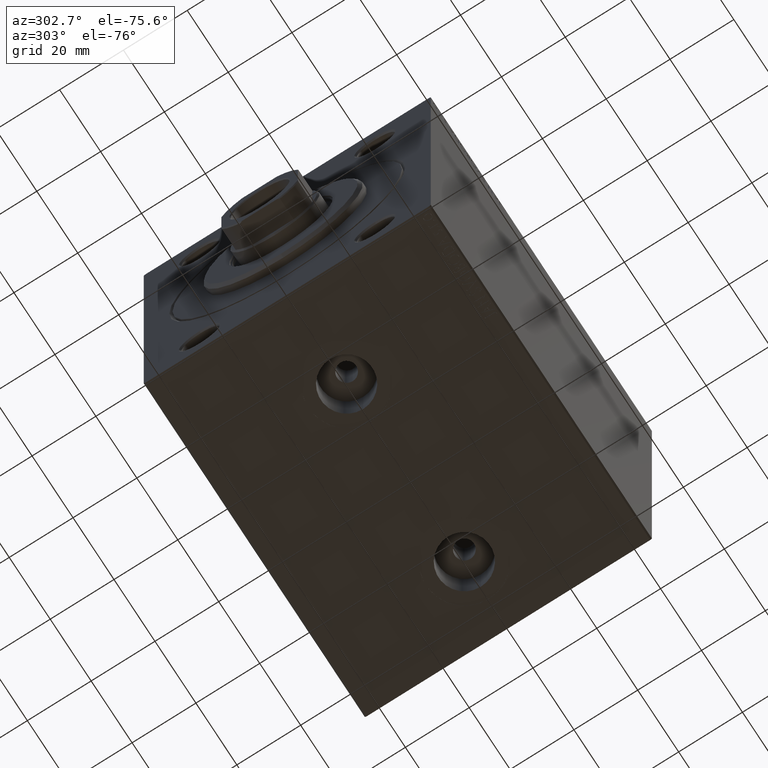
[diagram: clean part render]
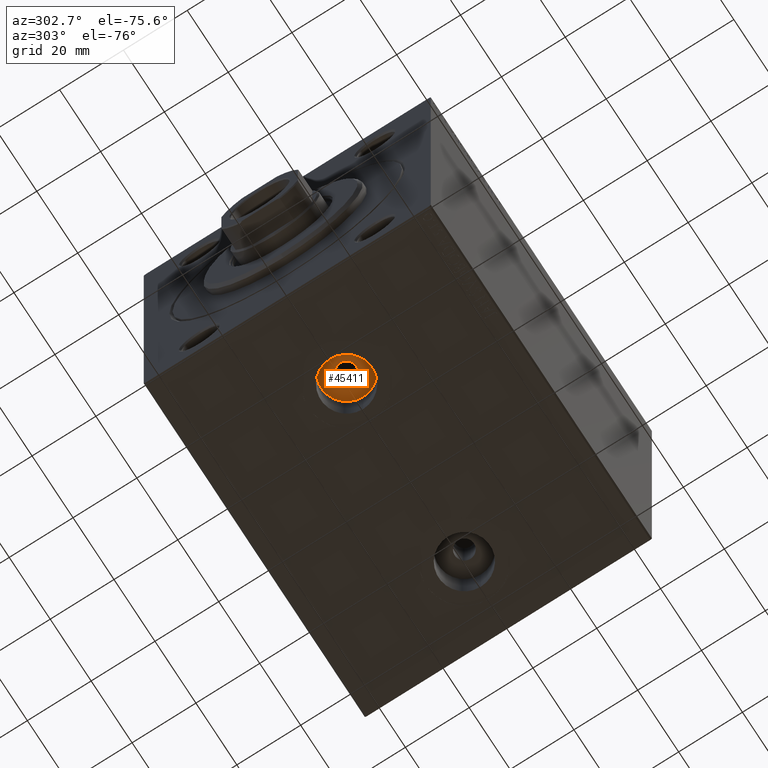
[diagram: same view with one face highlighted and labeled with its STEP entity id]
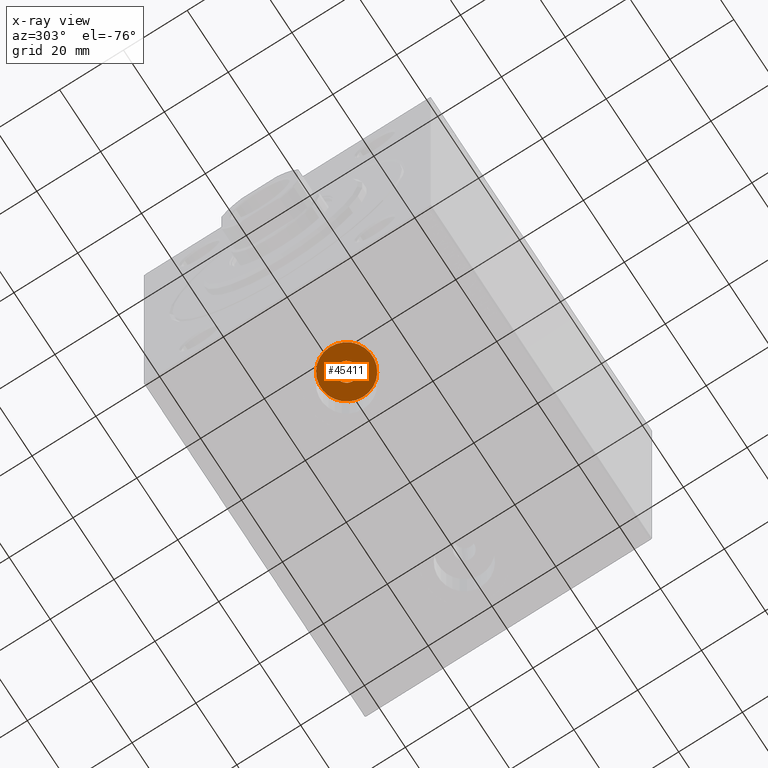
[diagram: x-ray of the same camera — body ghosted, the highlighted face saturated]
A machine part, auxiliary view. The second image highlights one B-rep face of the part: STEP entity #45411.
The next image is the same camera in x-ray: the body ghosted, the highlighted face saturated — about 0% of this face is hidden behind the body in this view.
In plain terms, the highlighted planar face has unit normal (0, 0, -1).
Its self-contained STEP definition (entity closure, byte-faithful):
#44 = AXIS2_PLACEMENT_3D ( 'NONE', #2964, #42216, #27690 ) ;
#894 = EDGE_LOOP ( 'NONE', ( #24087, #6669 ) ) ;
#1173 = AXIS2_PLACEMENT_3D ( 'NONE', #24225, #12927, #17056 ) ;
#1835 = DIRECTION ( 'NONE',  ( 0.000000000000000000, 0.000000000000000000, -1.000000000000000000 ) ) ;
#2733 = CIRCLE ( 'NONE', #20450, 8.084999999999999076 ) ;
#2964 = CARTESIAN_POINT ( 'NONE',  ( 29.00000000000000000, -3.767935990684166618E-15, -44.49999999999999289 ) ) ;
#5567 = DIRECTION ( 'NONE',  ( 0.000000000000000000, 0.000000000000000000, -1.000000000000000000 ) ) ;
#5581 = EDGE_CURVE ( 'NONE', #45728, #39964, #2733, .T. ) ;
#6669 = ORIENTED_EDGE ( 'NONE', *, *, #5581, .T. ) ;
#7065 = AXIS2_PLACEMENT_3D ( 'NONE', #29787, #1835, #23096 ) ;
#7847 = DIRECTION ( 'NONE',  ( -1.000000000000000000, 0.000000000000000000, 0.000000000000000000 ) ) ;
#8283 = CARTESIAN_POINT ( 'NONE',  ( 32.00000000000000000, -3.400541950939961568E-15, -44.49999999999999289 ) ) ;
#9814 = CARTESIAN_POINT ( 'NONE',  ( 26.00000000000000355, -3.767935990684166618E-15, -44.49999999999999289 ) ) ;
#12927 = DIRECTION ( 'NONE',  ( 0.000000000000000000, 0.000000000000000000, -1.000000000000000000 ) ) ;
#15704 = PLANE ( 'NONE',  #7065 ) ;
#16430 = DIRECTION ( 'NONE',  ( -1.000000000000000000, 0.000000000000000000, 0.000000000000000000 ) ) ;
#17056 = DIRECTION ( 'NONE',  ( -1.000000000000000000, 0.000000000000000000, 0.000000000000000000 ) ) ;
#17774 = CARTESIAN_POINT ( 'NONE',  ( 29.00000000000000000, -3.767935990684166618E-15, -44.49999999999999289 ) ) ;
#18107 = EDGE_CURVE ( 'NONE', #39964, #45728, #44410, .T. ) ;
#18706 = FACE_BOUND ( 'NONE', #35829, .T. ) ;
#20450 = AXIS2_PLACEMENT_3D ( 'NONE', #24037, #5567, #16430 ) ;
#22417 = FACE_OUTER_BOUND ( 'NONE', #894, .T. ) ;
#23026 = CIRCLE ( 'NONE', #25992, 2.999999999999999112 ) ;
#23096 = DIRECTION ( 'NONE',  ( -1.000000000000000000, 0.000000000000000000, -0.000000000000000000 ) ) ;
#24037 = CARTESIAN_POINT ( 'NONE',  ( 29.00000000000000000, -3.767935990684166618E-15, -44.49999999999999289 ) ) ;
#24087 = ORIENTED_EDGE ( 'NONE', *, *, #18107, .T. ) ;
#24225 = CARTESIAN_POINT ( 'NONE',  ( 29.00000000000000000, -3.767935990684166618E-15, -44.49999999999999289 ) ) ;
#25992 = AXIS2_PLACEMENT_3D ( 'NONE', #17774, #28186, #7847 ) ;
#26903 = VERTEX_POINT ( 'NONE', #9814 ) ;
#27690 = DIRECTION ( 'NONE',  ( -1.000000000000000000, 0.000000000000000000, 0.000000000000000000 ) ) ;
#28186 = DIRECTION ( 'NONE',  ( 0.000000000000000000, 0.000000000000000000, -1.000000000000000000 ) ) ;
#29202 = CIRCLE ( 'NONE', #1173, 2.999999999999999112 ) ;
#29787 = CARTESIAN_POINT ( 'NONE',  ( 29.00000000000000000, -3.767935990684166618E-15, -44.49999999999999289 ) ) ;
#30590 = EDGE_CURVE ( 'NONE', #39295, #26903, #23026, .T. ) ;
#35829 = EDGE_LOOP ( 'NONE', ( #45109, #39280 ) ) ;
#38196 = CARTESIAN_POINT ( 'NONE',  ( 37.08500000000000085, -2.777809053573531857E-15, -44.49999999999999289 ) ) ;
#39280 = ORIENTED_EDGE ( 'NONE', *, *, #30590, .F. ) ;
#39295 = VERTEX_POINT ( 'NONE', #8283 ) ;
#39964 = VERTEX_POINT ( 'NONE', #41181 ) ;
#41181 = CARTESIAN_POINT ( 'NONE',  ( 20.91500000000000270, -3.767935990684166618E-15, -44.49999999999999289 ) ) ;
#42216 = DIRECTION ( 'NONE',  ( 0.000000000000000000, 0.000000000000000000, -1.000000000000000000 ) ) ;
#44410 = CIRCLE ( 'NONE', #44, 8.084999999999999076 ) ;
#45109 = ORIENTED_EDGE ( 'NONE', *, *, #45442, .F. ) ;
#45411 = ADVANCED_FACE ( 'NONE', ( #18706, #22417 ), #15704, .T. ) ;
#45442 = EDGE_CURVE ( 'NONE', #26903, #39295, #29202, .T. ) ;
#45728 = VERTEX_POINT ( 'NONE', #38196 ) ;